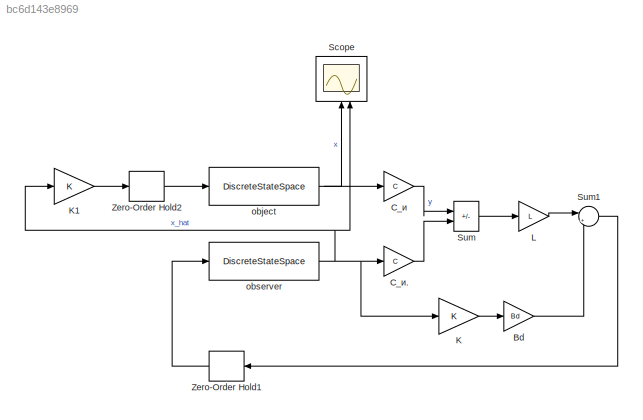
MODEL slx_bc6d143e8969
KIND model
CONFIG AbsTol = auto
CONFIG EnableMultiTasking = off
CONFIG FixedStep = auto
CONFIG MaxStep = auto
CONFIG MinStep = auto
CONFIG RelTol = 1e-3
CONFIG SampleTimeConstraint = Unconstrained
CONFIG SolverName = VariableStepAuto
CONFIG StartTime = 0.0
CONFIG StopTime = Tmdl
BLOCK [Gain] Bd
  Gain = Bd
  Multiplication = Matrix(K*u) (u vector)
BLOCK [Gain] C_и
  Gain = C
  Multiplication = Matrix(K*u) (u vector)
BLOCK [Gain] C_и.
  Gain = C
  Multiplication = Matrix(K*u) (u vector)
BLOCK [Gain] K
  Gain = K
  Multiplication = Matrix(K*u)
BLOCK [Gain] K1
  Gain = K
  Multiplication = Matrix(K*u)
BLOCK [Gain] L
  Gain = L
  Multiplication = Matrix(K*u) (u vector)
BLOCK [Scope] Scope
  Floating = off
  NameLocation = right
  NumInputPorts = 2
  ScopeSpecificationString = Simulink.scopes.TimeScopeBlockCfg('CurrentConfiguration', extmgr.ConfigurationSet(extmgr.Configuration('Core','General UI',true),extmgr.Configuration('Core','Source UI',true),extmgr.Configuration('Sources','WiredSimulink',true,'DataLoggingVariableName','out','DataLogging',true,'DataLoggingSaveFormat','StructureWithTime'),extmgr.Configuration('Visuals','Time Domain',true,'SerializedDisplays',{struc...<+1590ch>
BLOCK [Sum] Sum
  IconShape = rectangular
  Inputs = |+-
BLOCK [Sum] Sum1
  Inputs = |++
BLOCK [ZeroOrderHold] Zero-Order Hold1
  NameLocation = top
  SampleTime = T
BLOCK [ZeroOrderHold] Zero-Order Hold2
  SampleTime = T
BLOCK [DiscreteStateSpace] object
  A = Ad
  B = Bd
  C = eye(2)
  D = [0;0]
  InitialCondition = x_initial
  SampleTime = -1
BLOCK [DiscreteStateSpace] observer
  A = Ad
  B = eye(2)
  C = eye(2)
  D = [0 0;0 0]
  InitialCondition = x_hat_initial
  SampleTime = -1
LINE Bd:1 -> Sum1:2
LINE C_и.:1 -> Sum:2
LINE C_и:1 -> Sum:1
LINE K1:1 -> Zero-Order Hold2:1
LINE K:1 -> Bd:1
LINE L:1 -> Sum1:1
LINE Sum1:1 -> Zero-Order Hold1:1
LINE Sum:1 -> L:1
LINE Zero-Order Hold1:1 -> observer:1
LINE Zero-Order Hold2:1 -> object:1
NET object:1 -> C_и:1, Scope:1
NET observer:1 -> C_и.:1, K1:1, K:1, Scope:2
note: NET lines group one-source signal fan-out (src -> all destinations, sorted); 1:1 wires keep LINE
